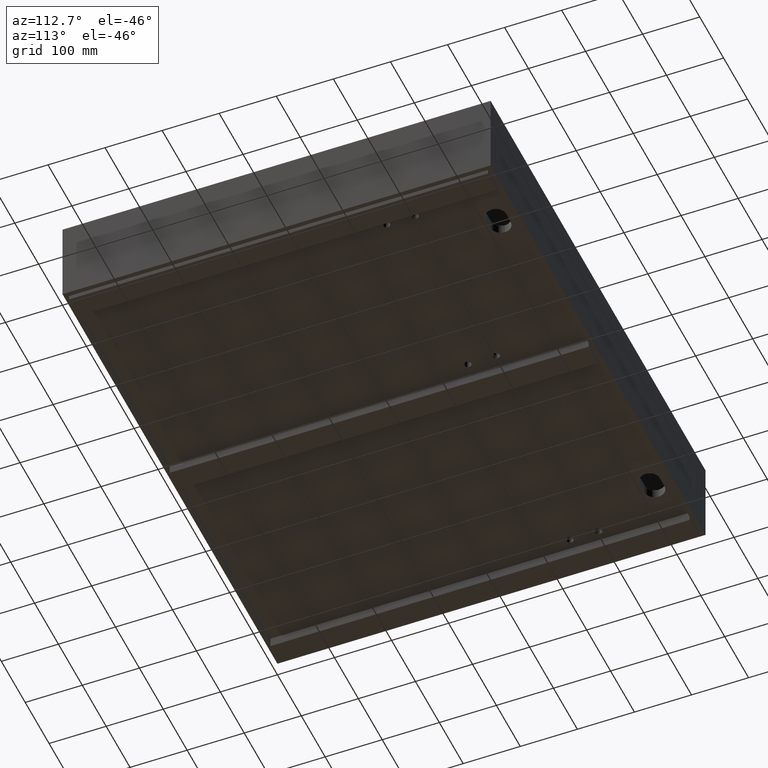
[diagram: clean part render]
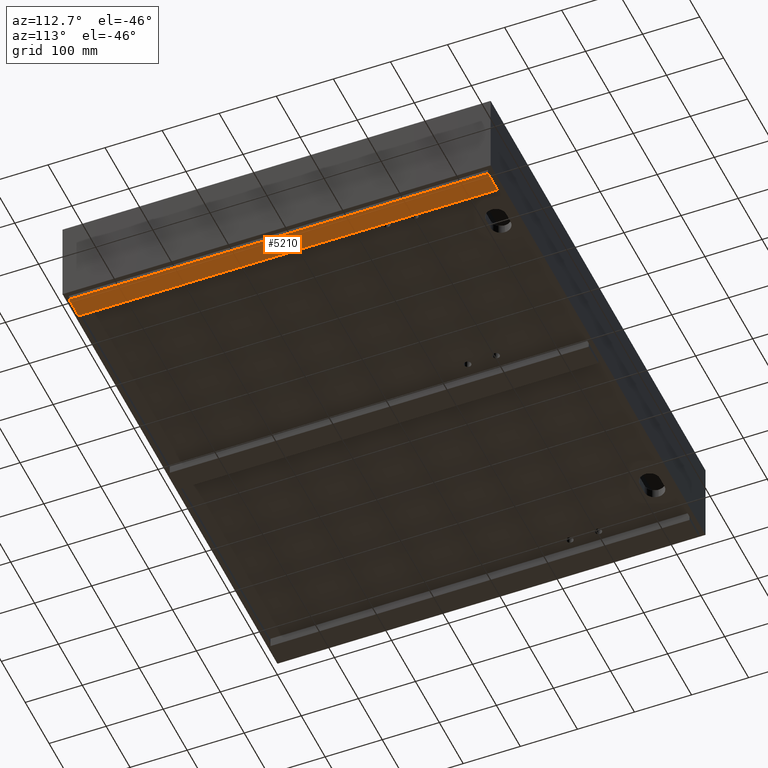
[diagram: same view with one face highlighted and labeled with its STEP entity id]
A machine part, auxiliary view. The second image highlights one B-rep face of the part: STEP entity #5210.
In plain terms, the highlighted planar face has unit normal (-0, 0, -1).
Its self-contained STEP definition (entity closure, byte-faithful):
#427 = VECTOR ( 'NONE', #2828, 1000.000000000000000 ) ;
#756 = LINE ( 'NONE', #4188, #8609 ) ;
#838 = EDGE_CURVE ( 'NONE', #1605, #2638, #6259, .T. ) ;
#880 = CARTESIAN_POINT ( 'NONE',  ( 851.9999999999998863, 741.9999000000000251, -158.0000000000003695 ) ) ;
#925 = ORIENTED_EDGE ( 'NONE', *, *, #838, .T. ) ;
#1605 = VERTEX_POINT ( 'NONE', #5472 ) ;
#1628 = DIRECTION ( 'NONE',  ( -1.000000000000000000, 2.976342582189707071E-34, 6.938893903907222461E-16 ) ) ;
#1969 = DIRECTION ( 'NONE',  ( -1.000000000000000000, -4.336808689942014038E-17, 6.938893903907222461E-16 ) ) ;
#2270 = EDGE_CURVE ( 'NONE', #2638, #5839, #8603, .T. ) ;
#2462 = PLANE ( 'NONE',  #7590 ) ;
#2634 = EDGE_CURVE ( 'NONE', #5839, #5261, #756, .T. ) ;
#2638 = VERTEX_POINT ( 'NONE', #5931 ) ;
#2828 = DIRECTION ( 'NONE',  ( -1.512565634716239722E-16, -1.000000000000000000, 0.0000000000000000000 ) ) ;
#2949 = ORIENTED_EDGE ( 'NONE', *, *, #2634, .T. ) ;
#4188 = CARTESIAN_POINT ( 'NONE',  ( 892.0000000000000000, 741.9999000000000251, -158.0000000000003695 ) ) ;
#4315 = DIRECTION ( 'NONE',  ( 5.224298136847846036E-34, 1.000000000000000000, 0.0000000000000000000 ) ) ;
#5161 = VECTOR ( 'NONE', #1969, 1000.000000000000000 ) ;
#5210 = ADVANCED_FACE ( 'NONE', ( #10201 ), #2462, .T. ) ;
#5261 = VERTEX_POINT ( 'NONE', #6021 ) ;
#5385 = CARTESIAN_POINT ( 'NONE',  ( 851.9999999999998863, 741.9999000000000251, -158.0000000000003695 ) ) ;
#5472 = CARTESIAN_POINT ( 'NONE',  ( 891.9999999999998863, 8.000000000000007105, -158.0000000000003695 ) ) ;
#5839 = VERTEX_POINT ( 'NONE', #5385 ) ;
#5908 = CARTESIAN_POINT ( 'NONE',  ( -1.110223024625156540E-13, 0.0000000000000000000, -157.9999999999997442 ) ) ;
#5931 = CARTESIAN_POINT ( 'NONE',  ( 851.9999999999998863, 8.000000000000007105, -158.0000000000003695 ) ) ;
#6021 = CARTESIAN_POINT ( 'NONE',  ( 892.0000000000000000, 741.9999000000000251, -158.0000000000003695 ) ) ;
#6259 = LINE ( 'NONE', #9706, #5161 ) ;
#7134 = LINE ( 'NONE', #10568, #427 ) ;
#7590 = AXIS2_PLACEMENT_3D ( 'NONE', #5908, #9360, #1628 ) ;
#7640 = DIRECTION ( 'NONE',  ( 1.000000000000000000, -2.976342582189683551E-34, -6.938893903907202740E-16 ) ) ;
#8145 = EDGE_LOOP ( 'NONE', ( #10415, #925, #8324, #2949 ) ) ;
#8324 = ORIENTED_EDGE ( 'NONE', *, *, #2270, .T. ) ;
#8603 = LINE ( 'NONE', #880, #8605 ) ;
#8605 = VECTOR ( 'NONE', #4315, 1000.000000000000000 ) ;
#8609 = VECTOR ( 'NONE', #7640, 1000.000000000000000 ) ;
#8834 = EDGE_CURVE ( 'NONE', #5261, #1605, #7134, .T. ) ;
#9360 = DIRECTION ( 'NONE',  ( -6.938893903907222461E-16, 1.049631819691043540E-31, -1.000000000000000000 ) ) ;
#9706 = CARTESIAN_POINT ( 'NONE',  ( 891.9999999999998863, 8.000000000000007105, -158.0000000000003695 ) ) ;
#10201 = FACE_OUTER_BOUND ( 'NONE', #8145, .T. ) ;
#10415 = ORIENTED_EDGE ( 'NONE', *, *, #8834, .T. ) ;
#10568 = CARTESIAN_POINT ( 'NONE',  ( 892.0000000000000000, 741.9999000000000251, -158.0000000000003695 ) ) ;